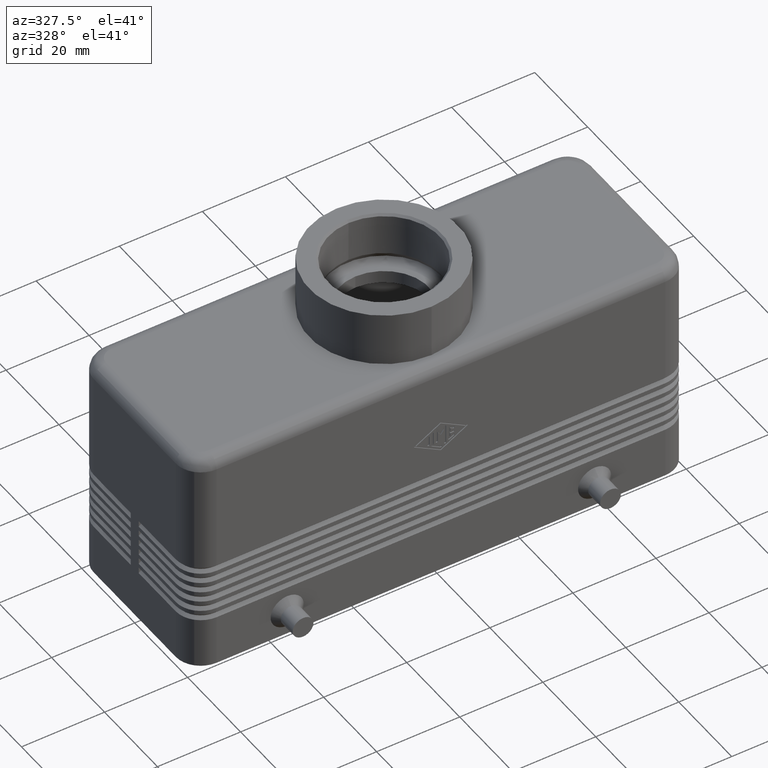
[diagram: clean part render]
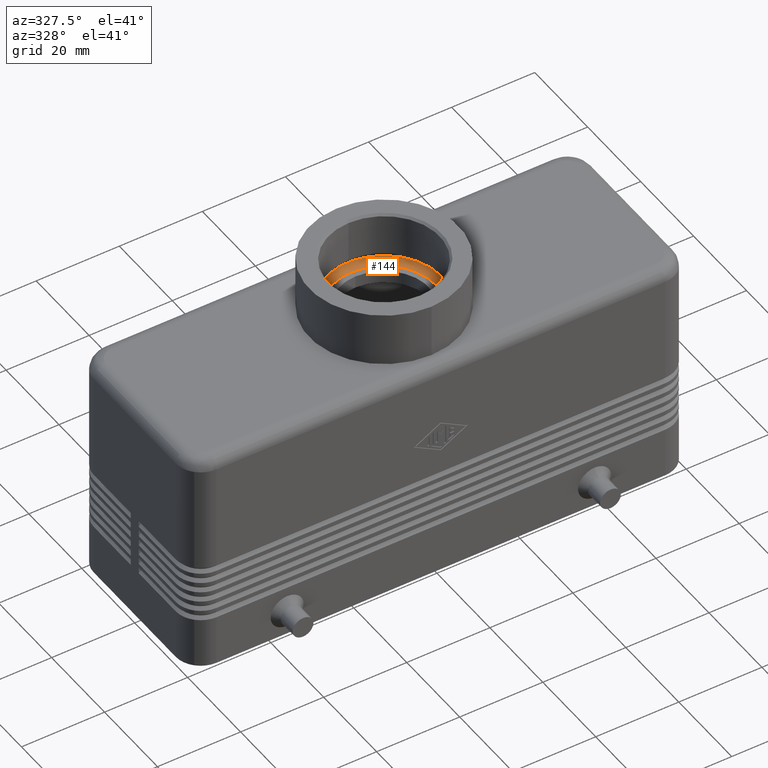
[diagram: same view with one face highlighted and labeled with its STEP entity id]
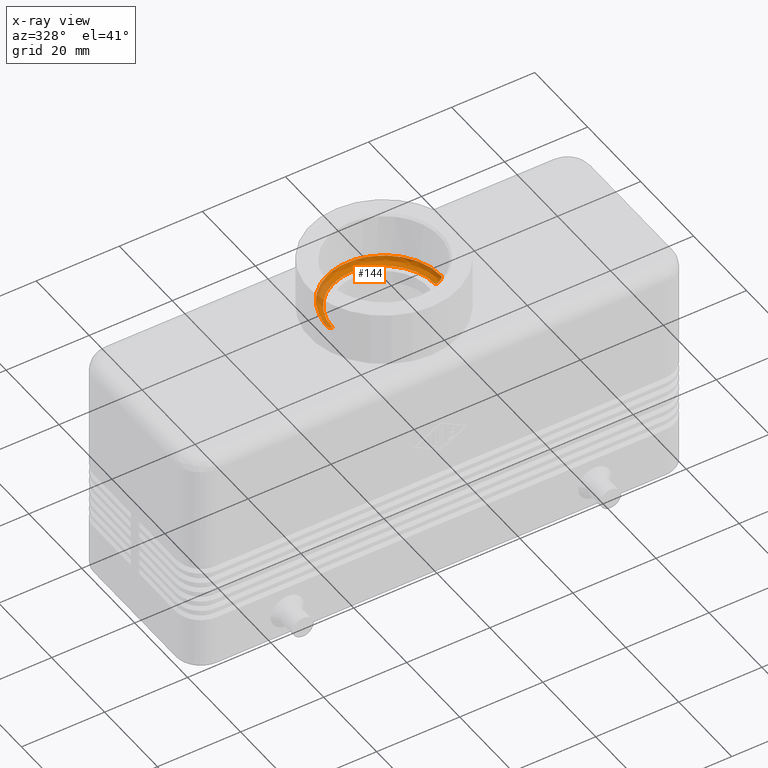
[diagram: x-ray of the same camera — body ghosted, the highlighted face saturated]
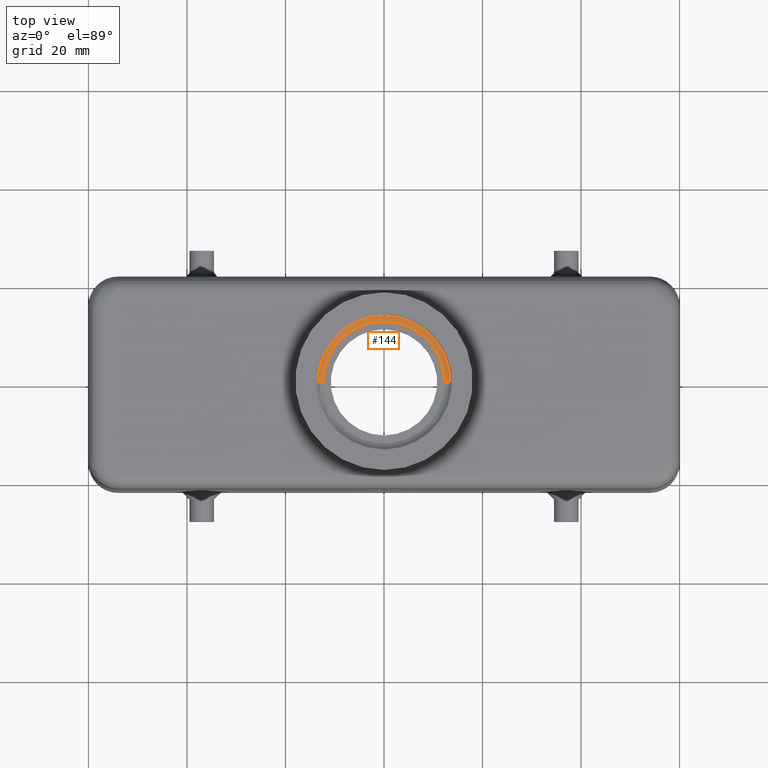
[diagram: same view with one face highlighted and labeled with its STEP entity id]
A machine part, auxiliary view. The second image highlights one B-rep face of the part: STEP entity #144.
The next image is the same camera in x-ray: the body ghosted, the highlighted face saturated — about 13% of this face is hidden behind the body in this view.
A second angle (top view) of the same face is appended — the face is thin or edge-on in the first view.
In plain terms, the highlighted face is a freeform B-spline surface patch.
Its self-contained STEP definition (entity closure, byte-faithful):
#44=CARTESIAN_POINT('',(13.890000000000001,-6.141870E-015,56.500000000000000));
#45=CARTESIAN_POINT('',(13.889999999999999,-5.806291E-015,54.999999999999993));
#46=CARTESIAN_POINT('',(12.390000000000001,-5.622600E-015,55.0));
#47=CARTESIAN_POINT('',(10.890000000000001,-5.438909E-015,54.999999999999993));
#48=CARTESIAN_POINT('',(10.890000000000001,-5.774488E-015,56.500000000000000));
#49=CARTESIAN_POINT('',(13.889999999999995,-13.890000000000004,56.500000000000000));
#50=CARTESIAN_POINT('',(13.889999999999995,-13.890000000000002,55.0));
#51=CARTESIAN_POINT('',(12.389999999999997,-12.390000000000001,55.0));
#52=CARTESIAN_POINT('',(10.889999999999997,-10.890000000000004,55.0));
#53=CARTESIAN_POINT('',(10.889999999999997,-10.890000000000006,56.500000000000000));
#54=CARTESIAN_POINT('',(-1.700978E-015,-13.890000000000004,56.500000000000000));
#55=CARTESIAN_POINT('',(-1.700978E-015,-13.890000000000004,54.999999999999993));
#56=CARTESIAN_POINT('',(-1.517287E-015,-12.390000000000004,55.0));
#57=CARTESIAN_POINT('',(-1.333596E-015,-10.890000000000004,54.999999999999993));
#58=CARTESIAN_POINT('',(-1.333596E-015,-10.890000000000004,56.500000000000000));
#59=CARTESIAN_POINT('',(-13.889999999999999,-13.889999999999999,56.500000000000000));
#60=CARTESIAN_POINT('',(-13.889999999999999,-13.889999999999999,55.0));
#61=CARTESIAN_POINT('',(-12.389999999999999,-12.389999999999999,55.0));
#62=CARTESIAN_POINT('',(-10.890000000000001,-10.890000000000001,55.0));
#63=CARTESIAN_POINT('',(-10.890000000000001,-10.890000000000002,56.500000000000000));
#64=CARTESIAN_POINT('',(-13.890000000000001,-2.739914E-015,56.500000000000000));
#65=CARTESIAN_POINT('',(-13.889999999999999,-2.404335E-015,54.999999999999993));
#66=CARTESIAN_POINT('',(-12.390000000000001,-2.588026E-015,55.0));
#67=CARTESIAN_POINT('',(-10.890000000000001,-2.771716E-015,54.999999999999993));
#68=CARTESIAN_POINT('',(-10.890000000000001,-3.107296E-015,56.500000000000000));
#69=CARTESIAN_POINT('',(-13.889999999999995,13.889999999999995,56.500000000000000));
#70=CARTESIAN_POINT('',(-13.889999999999995,13.889999999999995,55.0));
#71=CARTESIAN_POINT('',(-12.389999999999997,12.389999999999997,55.0));
#72=CARTESIAN_POINT('',(-10.889999999999997,10.889999999999997,55.0));
#73=CARTESIAN_POINT('',(-10.889999999999997,10.889999999999995,56.500000000000000));
#74=CARTESIAN_POINT('',(1.700978E-015,13.889999999999997,56.500000000000000));
#75=CARTESIAN_POINT('',(1.700978E-015,13.889999999999997,54.999999999999993));
#76=CARTESIAN_POINT('',(1.517287E-015,12.389999999999997,55.0));
#77=CARTESIAN_POINT('',(1.333596E-015,10.889999999999997,54.999999999999993));
#78=CARTESIAN_POINT('',(1.333596E-015,10.889999999999997,56.500000000000000));
#79=CARTESIAN_POINT('',(13.889999999999999,13.889999999999990,56.500000000000000));
#80=CARTESIAN_POINT('',(13.889999999999999,13.889999999999992,55.0));
#81=CARTESIAN_POINT('',(12.389999999999999,12.389999999999992,55.0));
#82=CARTESIAN_POINT('',(10.890000000000001,10.889999999999993,55.0));
#83=CARTESIAN_POINT('',(10.890000000000001,10.889999999999992,56.500000000000000));
#84=CARTESIAN_POINT('',(13.890000000000001,-6.141870E-015,56.500000000000000));
#85=CARTESIAN_POINT('',(13.889999999999999,-5.806291E-015,54.999999999999993));
#86=CARTESIAN_POINT('',(12.390000000000001,-5.622600E-015,55.0));
#87=CARTESIAN_POINT('',(10.890000000000001,-5.438909E-015,54.999999999999993));
#88=CARTESIAN_POINT('',(10.890000000000001,-5.774488E-015,56.500000000000000));
#96=(BOUNDED_SURFACE()B_SPLINE_SURFACE(2,2,((#44,#49,#54,#59,#64,#69,#74,#79,#84),(#45,#50,#55,#60,#65,#70,#75,#80,#85),(#46,#51,#56,#61,#66,#71,#76,#81,#86),(#47,#52,#57,#62,#67,#72,#77,#82,#87),(#48,#53,#58,#63,#68,#73,#78,#83,#88)),.UNSPECIFIED.,.F.,.T.,.U.)B_SPLINE_SURFACE_WITH_KNOTS((3,2,3),(3,2,2,2,3),(-2.730143E-031,1.570796326794897,3.141592653589793),(0.0,1.570796326794897,3.141592653589793,4.712388980384690,6.283185307179586),.UNSPECIFIED.)GEOMETRIC_REPRESENTATION_ITEM()RATIONAL_B_SPLINE_SURFACE(((1.0,0.707106781186548,1.0,0.707106781186548,1.0,0.707106781186548,1.0,0.707106781186548,1.0),(0.707106781186550,0.500000000000002,0.707106781186550,0.500000000000002,0.707106781186550,0.500000000000002,0.707106781186550,0.500000000000002,0.707106781186550),(1.0,0.707106781186548,1.0,0.707106781186548,1.0,0.707106781186548,1.0,0.707106781186548,1.0),(0.707106781186550,0.500000000000002,0.707106781186550,0.500000000000002,0.707106781186550,0.500000000000002,0.707106781186550,0.500000000000002,0.707106781186550),(1.0,0.707106781186548,1.0,0.707106781186548,1.0,0.707106781186548,1.0,0.707106781186548,1.0)))REPRESENTATION_ITEM('')SURFACE());
#97=CARTESIAN_POINT('',(-13.890000000000001,-6.271405E-015,56.500000000000000));
#98=VERTEX_POINT('',#97);
#99=CARTESIAN_POINT('',(13.890000000000001,-2.610379E-015,56.500000000000000));
#100=VERTEX_POINT('',#99);
#101=CARTESIAN_POINT('',(0.0,-4.440892E-015,56.500000000000000));
#102=DIRECTION('',(0.0,0.0,-1.0));
#103=DIRECTION('',(-1.0,0.0,0.0));
#104=AXIS2_PLACEMENT_3D('',#101,#102,#103);
#105=CIRCLE('',#104,13.890000000000001);
#106=EDGE_CURVE('',#98,#100,#105,.T.);
#107=ORIENTED_EDGE('',*,*,#106,.F.);
#108=CARTESIAN_POINT('',(-12.390000000000001,-5.622600E-015,55.0));
#109=VERTEX_POINT('',#108);
#110=CARTESIAN_POINT('',(-12.390000000000001,-5.958179E-015,56.500000000000000));
#111=DIRECTION('',(0.0,-1.0,0.0));
#112=DIRECTION('',(-1.0,0.0,0.0));
#113=AXIS2_PLACEMENT_3D('',#110,#111,#112);
#114=CIRCLE('',#113,1.500000000000000);
#115=EDGE_CURVE('',#98,#109,#114,.T.);
#116=ORIENTED_EDGE('',*,*,#115,.T.);
#117=CARTESIAN_POINT('',(0.0,12.389999999999999,55.0));
#118=VERTEX_POINT('',#117);
#119=CARTESIAN_POINT('',(0.0,-3.355793E-015,55.0));
#120=DIRECTION('',(0.0,0.0,1.0));
#121=DIRECTION('',(0.0,1.0,0.0));
#122=AXIS2_PLACEMENT_3D('',#119,#120,#121);
#123=CIRCLE('',#122,12.390000000000001);
#124=EDGE_CURVE('',#118,#109,#123,.T.);
#125=ORIENTED_EDGE('',*,*,#124,.F.);
#126=CARTESIAN_POINT('',(12.390000000000001,-2.588026E-015,55.0));
#127=VERTEX_POINT('',#126);
#128=CARTESIAN_POINT('',(0.0,-3.355793E-015,55.0));
#129=DIRECTION('',(0.0,0.0,1.0));
#130=DIRECTION('',(0.0,1.0,0.0));
#131=AXIS2_PLACEMENT_3D('',#128,#129,#130);
#132=CIRCLE('',#131,12.390000000000001);
#133=EDGE_CURVE('',#127,#118,#132,.T.);
#134=ORIENTED_EDGE('',*,*,#133,.F.);
#135=CARTESIAN_POINT('',(12.390000000000001,-2.923605E-015,56.500000000000000));
#136=DIRECTION('',(0.0,-1.0,0.0));
#137=DIRECTION('',(1.0,0.0,0.0));
#138=AXIS2_PLACEMENT_3D('',#135,#136,#137);
#139=CIRCLE('',#138,1.500000000000000);
#140=EDGE_CURVE('',#127,#100,#139,.T.);
#141=ORIENTED_EDGE('',*,*,#140,.T.);
#142=EDGE_LOOP('',(#107,#116,#125,#134,#141));
#143=FACE_OUTER_BOUND('',#142,.T.);
#144=ADVANCED_FACE('',(#143),#96,.T.);